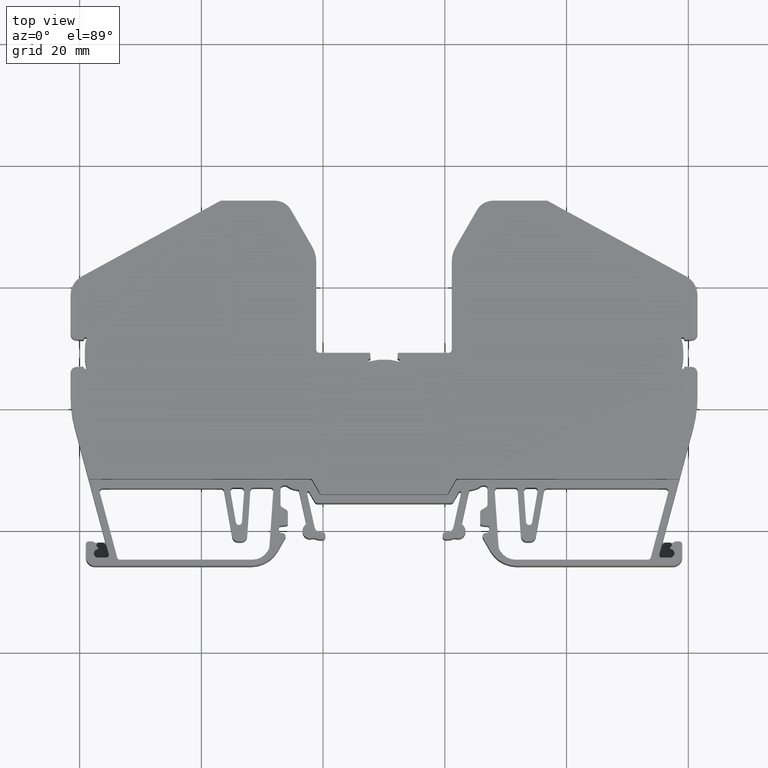
[diagram: clean part render]
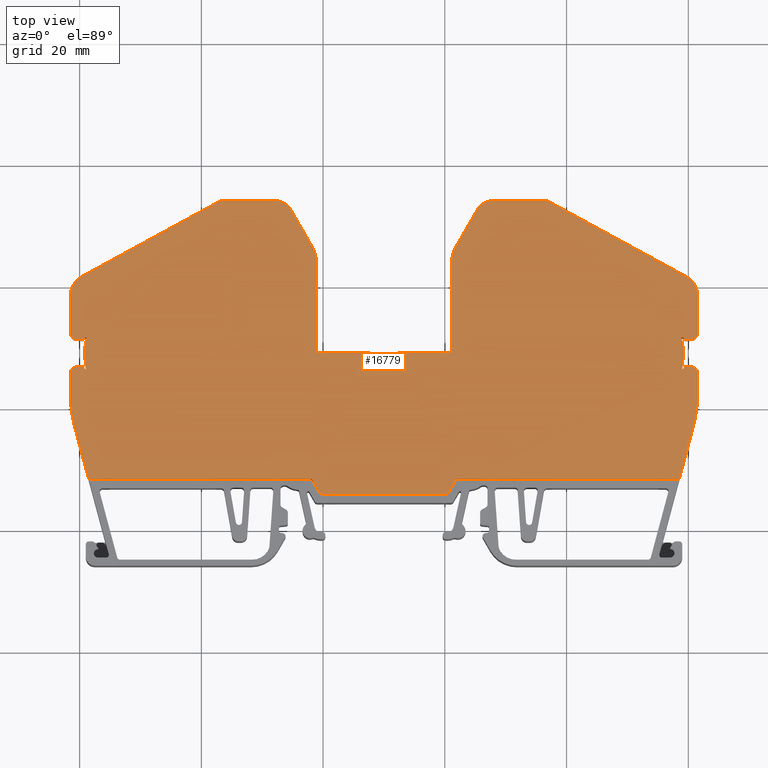
[diagram: same view with one face highlighted and labeled with its STEP entity id]
A machine part, top view. The second image highlights one B-rep face of the part: STEP entity #16779.
In plain terms, the highlighted planar face has unit normal (0, 0, 1).
Its self-contained STEP definition (entity closure, byte-faithful):
#279 = DIRECTION ( 'NONE',  ( 0.0000000000000000000, 0.0000000000000000000, 1.000000000000000000 ) ) ;
#284 = DIRECTION ( 'NONE',  ( 1.000000000000000000, 0.0000000000000000000, 0.0000000000000000000 ) ) ;
#286 = CARTESIAN_POINT ( 'NONE',  ( 1380.507059505063800, 432.2764455366744900, 15.10000000000000100 ) ) ;
#345 = CARTESIAN_POINT ( 'NONE',  ( 1332.450864096576000, 428.8739960424371100, 15.10000000000000100 ) ) ;
#346 = DIRECTION ( 'NONE',  ( 1.000000000000000000, 0.0000000000000000000, 0.0000000000000000000 ) ) ;
#354 = DIRECTION ( 'NONE',  ( 0.0000000000000000000, 0.0000000000000000000, 1.000000000000000000 ) ) ;
#379 = LINE ( 'NONE', #386, #6361 ) ;
#381 = CARTESIAN_POINT ( 'NONE',  ( 1282.007059505069900, 426.4082822040587600, 15.10000000000000100 ) ) ;
#385 = LINE ( 'NONE', #381, #6320 ) ;
#386 = CARTESIAN_POINT ( 'NONE',  ( 1282.007059505069900, 431.6199358779061900, 15.10000000000000100 ) ) ;
#391 = DIRECTION ( 'NONE',  ( -1.000000000000000000, -0.0000000000000000000, 0.0000000000000000000 ) ) ;
#430 = DIRECTION ( 'NONE',  ( 1.000000000000000000, 0.0000000000000000000, -0.0000000000000000000 ) ) ;
#447 = LINE ( 'NONE', #482, #6390 ) ;
#448 = CARTESIAN_POINT ( 'NONE',  ( 1319.385295467850000, 429.5739963311466500, 15.10000000000000100 ) ) ;
#451 = CARTESIAN_POINT ( 'NONE',  ( 1347.903042648175900, 451.0739963311599500, 15.09999999999998900 ) ) ;
#453 = CARTESIAN_POINT ( 'NONE',  ( 1345.304966436822500, 452.5739963311590400, 15.09999999999998900 ) ) ;
#454 = DIRECTION ( 'NONE',  ( 1.000000000000000000, -1.110223024625114500E-013, 0.0000000000000000000 ) ) ;
#455 = CARTESIAN_POINT ( 'NONE',  ( 1378.007059505064000, 438.5395016427289600, 15.09999999999998900 ) ) ;
#456 = DIRECTION ( 'NONE',  ( 1.000000000000000000, 0.0000000000000000000, 0.0000000000000000000 ) ) ;
#459 = DIRECTION ( 'NONE',  ( 0.0000000000000000000, 1.000000000000000000, -0.0000000000000000000 ) ) ;
#465 = DIRECTION ( 'NONE',  ( 9.192014768266044000E-007, -0.9999999999995775600, -0.0000000000000000000 ) ) ;
#466 = CARTESIAN_POINT ( 'NONE',  ( 1381.507061570451900, 331.2175553138849900, 15.10000000000000100 ) ) ;
#471 = DIRECTION ( 'NONE',  ( -0.0000000000000000000, -0.0000000000000000000, -1.000000000000000000 ) ) ;
#475 = LINE ( 'NONE', #487, #6335 ) ;
#479 = DIRECTION ( 'NONE',  ( -0.0000000000000000000, -0.0000000000000000000, -1.000000000000000000 ) ) ;
#480 = LINE ( 'NONE', #453, #6375 ) ;
#482 = CARTESIAN_POINT ( 'NONE',  ( 1378.587437217462100, 408.5426663702730800, 15.09999999999998900 ) ) ;
#483 = DIRECTION ( 'NONE',  ( 1.000000000000000000, -1.903239470785950800E-013, 0.0000000000000000000 ) ) ;
#485 = LINE ( 'NONE', #466, #6357 ) ;
#487 = CARTESIAN_POINT ( 'NONE',  ( 1381.507061570452200, 436.2925643445936400, 15.09999999999998900 ) ) ;
#489 = DIRECTION ( 'NONE',  ( 0.4999999999999657500, 0.8660254037844584700, -0.0000000000000000000 ) ) ;
#490 = DIRECTION ( 'NONE',  ( -0.2588002801199447700, -0.9659308541556367300, -0.0000000000000000000 ) ) ;
#491 = DIRECTION ( 'NONE',  ( -0.0000000000000000000, -0.0000000000000000000, -1.000000000000000000 ) ) ;
#493 = LINE ( 'NONE', #522, #6391 ) ;
#504 = DIRECTION ( 'NONE',  ( -0.0000000000000000000, -0.0000000000000000000, -1.000000000000000000 ) ) ;
#507 = DIRECTION ( 'NONE',  ( 1.000000000000000000, 0.0000000000000000000, 0.0000000000000000000 ) ) ;
#515 = CARTESIAN_POINT ( 'NONE',  ( 1298.507053994932000, 422.0725514345485300, 15.09999999999998900 ) ) ;
#517 = DIRECTION ( 'NONE',  ( -0.0000000000000000000, -0.0000000000000000000, -1.000000000000000000 ) ) ;
#522 = CARTESIAN_POINT ( 'NONE',  ( 1359.959882189196400, 452.3652991422723600, 15.10000000000004400 ) ) ;
#530 = CARTESIAN_POINT ( 'NONE',  ( 1361.507065015202200, 422.0725514345620000, 15.09999999999998900 ) ) ;
#533 = DIRECTION ( 'NONE',  ( 0.8779877064646860500, -0.4786831805034308400, -0.0000000000000000000 ) ) ;
#538 = CARTESIAN_POINT ( 'NONE',  ( 1332.612890107524000, 438.5395016427154900, 15.10000000000000100 ) ) ;
#541 = DIRECTION ( 'NONE',  ( 0.0000000000000000000, 1.000000000000000000, -0.0000000000000000000 ) ) ;
#542 = LINE ( 'NONE', #565, #6437 ) ;
#550 = DIRECTION ( 'NONE',  ( 1.000000000000000000, 0.0000000000000000000, -0.0000000000000000000 ) ) ;
#551 = DIRECTION ( 'NONE',  ( 0.0000000000000000000, -1.000000000000000000, -0.0000000000000000000 ) ) ;
#553 = DIRECTION ( 'NONE',  ( 1.000000000000000000, 0.0000000000000000000, 0.0000000000000000000 ) ) ;
#556 = DIRECTION ( 'NONE',  ( 1.000000000000000000, 0.0000000000000000000, 0.0000000000000000000 ) ) ;
#559 = LINE ( 'NONE', #538, #6403 ) ;
#565 = CARTESIAN_POINT ( 'NONE',  ( 1381.507059505064000, 331.2175553138849900, 15.10000000000000100 ) ) ;
#566 = DIRECTION ( 'NONE',  ( -0.0000000000000000000, -0.0000000000000000000, -1.000000000000000000 ) ) ;
#570 = LINE ( 'NONE', #572, #6418 ) ;
#571 = CARTESIAN_POINT ( 'NONE',  ( 1340.628823542284400, 429.5739963311594900, 15.09999999999999100 ) ) ;
#572 = CARTESIAN_POINT ( 'NONE',  ( 1350.440820881607800, 454.0739963311599500, 15.09999999999998900 ) ) ;
#578 = LINE ( 'NONE', #581, #6420 ) ;
#581 = CARTESIAN_POINT ( 'NONE',  ( 1279.188440239205600, 416.8965467236529300, 15.10000000000004400 ) ) ;
#582 = DIRECTION ( 'NONE',  ( -0.2588002801200688900, 0.9659308541556034200, -0.0000000000000000000 ) ) ;
#597 = LINE ( 'NONE', #613, #6445 ) ;
#599 = CARTESIAN_POINT ( 'NONE',  ( 1327.401228901802800, 438.5395016427154900, 15.10000000000000100 ) ) ;
#607 = DIRECTION ( 'NONE',  ( -0.0000000000000000000, -1.000000000000000000, -0.0000000000000000000 ) ) ;
#612 = LINE ( 'NONE', #599, #6430 ) ;
#613 = CARTESIAN_POINT ( 'NONE',  ( 1278.507057439682500, 331.2175553138714600, 15.10000000000000100 ) ) ;
#620 = DIRECTION ( 'NONE',  ( -0.0000000000000000000, 1.000000000000000000, 0.0000000000000000000 ) ) ;
#634 = DIRECTION ( 'NONE',  ( 1.000000000000000000, 0.0000000000000000000, 0.0000000000000000000 ) ) ;
#642 = DIRECTION ( 'NONE',  ( 0.0000000000000000000, 0.0000000000000000000, 1.000000000000000000 ) ) ;
#643 = DIRECTION ( 'NONE',  ( 1.000000000000000000, 1.110223024625180200E-014, 0.0000000000000000000 ) ) ;
#645 = CARTESIAN_POINT ( 'NONE',  ( 1327.563254913559800, 428.8739960424234700, 15.10000000000000100 ) ) ;
#663 = DIRECTION ( 'NONE',  ( -0.0000000000000000000, -0.0000000000000000000, -1.000000000000000000 ) ) ;
#666 = CARTESIAN_POINT ( 'NONE',  ( 1369.193302718438000, 429.0141127513574600, 15.10000000000000100 ) ) ;
#672 = CARTESIAN_POINT ( 'NONE',  ( 1346.128823536316100, 444.0009586856584700, 15.09999999999998900 ) ) ;
#673 = DIRECTION ( 'NONE',  ( -0.0000000000000000000, -0.0000000000000000000, -1.000000000000000000 ) ) ;
#674 = DIRECTION ( 'NONE',  ( 1.000000000000000000, 0.0000000000000000000, 0.0000000000000000000 ) ) ;
#685 = CARTESIAN_POINT ( 'NONE',  ( 1318.885295473820200, 431.1050129236735400, 15.09999999999998900 ) ) ;
#691 = LINE ( 'NONE', #685, #6478 ) ;
#692 = DIRECTION ( 'NONE',  ( 0.5000000000000405200, -0.8660254037844152800, -0.0000000000000000000 ) ) ;
#696 = CARTESIAN_POINT ( 'NONE',  ( 1318.215422492741500, 446.5009586856455700, 15.09999999999998900 ) ) ;
#701 = DIRECTION ( 'NONE',  ( -0.0000000000000000000, -1.000000000000000000, -0.0000000000000000000 ) ) ;
#712 = LINE ( 'NONE', #696, #6502 ) ;
#726 = DIRECTION ( 'NONE',  ( 1.000000000000000000, -2.158845106333508200E-013, -0.0000000000000000000 ) ) ;
#740 = CARTESIAN_POINT ( 'NONE',  ( 1312.111076361960200, 454.0739963311454500, 15.09999999999998900 ) ) ;
#741 = LINE ( 'NONE', #747, #6469 ) ;
#747 = CARTESIAN_POINT ( 'NONE',  ( 1330.007060531789900, 429.0739960545575400, 15.10000000000000100 ) ) ;
#748 = DIRECTION ( 'NONE',  ( -1.000000000000000000, -5.391711919074419500E-013, -0.0000000000000000000 ) ) ;
#752 = LINE ( 'NONE', #740, #6479 ) ;
#757 = CARTESIAN_POINT ( 'NONE',  ( 1282.007059505069900, 438.5395016427154900, 15.09999999999998900 ) ) ;
#761 = DIRECTION ( 'NONE',  ( 1.000000000000000000, -6.344131569286503000E-014, 0.0000000000000000000 ) ) ;
#768 = LINE ( 'NONE', #782, #6508 ) ;
#772 = CARTESIAN_POINT ( 'NONE',  ( 1303.188282860192700, 454.0739963311461300, 15.09999999999998900 ) ) ;
#777 = DIRECTION ( 'NONE',  ( 0.8779877064646933700, 0.4786831805034174000, -0.0000000000000000000 ) ) ;
#780 = DIRECTION ( 'NONE',  ( 1.000000000000000000, 0.0000000000000000000, 0.0000000000000000000 ) ) ;
#782 = CARTESIAN_POINT ( 'NONE',  ( 1330.007058478346200, 429.0739960545444700, 15.10000000000000100 ) ) ;
#784 = DIRECTION ( 'NONE',  ( 1.000000000000000000, 3.330669073875540900E-014, 0.0000000000000000000 ) ) ;
#786 = DIRECTION ( 'NONE',  ( -0.0000000000000000000, -0.0000000000000000000, -1.000000000000000000 ) ) ;
#787 = LINE ( 'NONE', #772, #6501 ) ;
#793 = DIRECTION ( 'NONE',  ( -0.0000000000000000000, -0.0000000000000000000, -1.000000000000000000 ) ) ;
#794 = DIRECTION ( 'NONE',  ( -0.0000000000000000000, -0.0000000000000000000, -1.000000000000000000 ) ) ;
#795 = CARTESIAN_POINT ( 'NONE',  ( 1290.820816291698100, 429.0141127513439900, 15.10000000000000100 ) ) ;
#797 = CARTESIAN_POINT ( 'NONE',  ( 1330.007059499150000, 417.9672282685015100, 15.10000000000000100 ) ) ;
#801 = DIRECTION ( 'NONE',  ( -1.000000000000000000, 5.391711919074419500E-013, -0.0000000000000000000 ) ) ;
#815 = DIRECTION ( 'NONE',  ( -0.0000000000000000000, -0.0000000000000000000, -1.000000000000000000 ) ) ;
#825 = CARTESIAN_POINT ( 'NONE',  ( 1312.111076361960200, 451.0739963311459600, 15.09999999999998900 ) ) ;
#830 = DIRECTION ( 'NONE',  ( 1.000000000000000000, 0.0000000000000000000, 0.0000000000000000000 ) ) ;
#846 = DIRECTION ( 'NONE',  ( -0.0000000000000000000, -0.0000000000000000000, -1.000000000000000000 ) ) ;
#863 = LINE ( 'NONE', #864, #6545 ) ;
#864 = CARTESIAN_POINT ( 'NONE',  ( 1341.128823536316100, 444.0009586856584700, 15.09999999999998900 ) ) ;
#867 = DIRECTION ( 'NONE',  ( 0.0000000000000000000, 1.000000000000000000, -0.0000000000000000000 ) ) ;
#872 = DIRECTION ( 'NONE',  ( 1.000000000000000000, -1.221245327087752500E-013, 0.0000000000000000000 ) ) ;
#887 = CARTESIAN_POINT ( 'NONE',  ( 1313.885295473820000, 444.0009586856450000, 15.09999999999998900 ) ) ;
#920 = CARTESIAN_POINT ( 'NONE',  ( 1278.507059505069900, 331.2175553138714600, 15.09999999999999100 ) ) ;
#921 = DIRECTION ( 'NONE',  ( -0.0000000000000000000, -1.000000000000000000, -0.0000000000000000000 ) ) ;
#934 = LINE ( 'NONE', #920, #6519 ) ;
#1065 = CARTESIAN_POINT ( 'NONE',  ( 1327.595558414996000, 428.0642166983818100, 15.10000000000000100 ) ) ;
#1081 = CARTESIAN_POINT ( 'NONE',  ( 1379.193302718437700, 429.0141127513574600, 15.10000000000000100 ) ) ;
#1100 = CARTESIAN_POINT ( 'NONE',  ( 1378.847816949997200, 426.4082817989321400, 15.10000000000000100 ) ) ;
#1131 = CARTESIAN_POINT ( 'NONE',  ( 1327.789887927380100, 428.2641362961462100, 15.10000000000000100 ) ) ;
#1297 = CARTESIAN_POINT ( 'NONE',  ( 1379.498930441186500, 426.7967511128397900, 15.10000000000000100 ) ) ;
#1307 = CARTESIAN_POINT ( 'NONE',  ( 1379.290291506542400, 426.6026117994340400, 15.10000000000000100 ) ) ;
#1324 = CARTESIAN_POINT ( 'NONE',  ( 1327.789697486734900, 428.2728621193334100, 15.10000000000000500 ) ) ;
#1349 = CARTESIAN_POINT ( 'NONE',  ( 1379.290289326307900, 431.4256063655214500, 15.10000000000000100 ) ) ;
#1358 = CARTESIAN_POINT ( 'NONE',  ( 1340.205312498048000, 405.8015322684449900, 15.10000000000000100 ) ) ;
#1365 = CARTESIAN_POINT ( 'NONE',  ( 1332.418560595140000, 428.0642166983952300, 15.10000000000000100 ) ) ;
#1367 = CARTESIAN_POINT ( 'NONE',  ( 1332.224421523399300, 428.2728621193470000, 15.10000000000000700 ) ) ;
#1384 = CARTESIAN_POINT ( 'NONE',  ( 1340.551722025107000, 406.0015311695425500, 15.10000000000000900 ) ) ;
#1385 = CARTESIAN_POINT ( 'NONE',  ( 1379.498934747259900, 431.2314672937809500, 15.10000000000000700 ) ) ;
#1400 = CARTESIAN_POINT ( 'NONE',  ( 1319.808806512086000, 405.8015322684315700, 15.10000000000000100 ) ) ;
#1403 = CARTESIAN_POINT ( 'NONE',  ( 1280.923746435614000, 426.4082822040455200, 15.10000000000000500 ) ) ;
#1420 = CARTESIAN_POINT ( 'NONE',  ( 1279.463428280159600, 426.7508199595254700, 15.10000000000000100 ) ) ;
#1438 = CARTESIAN_POINT ( 'NONE',  ( 1379.090369728543900, 431.6199358779061300, 15.10000000000000100 ) ) ;
#1443 = CARTESIAN_POINT ( 'NONE',  ( 1319.462396985027700, 406.0015311695288500, 15.10000000000000500 ) ) ;
#1445 = CARTESIAN_POINT ( 'NONE',  ( 1280.923749281592100, 431.6199358778929400, 15.10000000000000100 ) ) ;
#1449 = CARTESIAN_POINT ( 'NONE',  ( 1380.550691839306600, 426.7508199110930000, 15.10000000000000100 ) ) ;
#1452 = CARTESIAN_POINT ( 'NONE',  ( 1279.463431029879100, 431.2773977119039700, 15.10000000000000100 ) ) ;
#1474 = CARTESIAN_POINT ( 'NONE',  ( 1332.612890107524000, 427.8642971006307800, 15.10000000000000100 ) ) ;
#1486 = CARTESIAN_POINT ( 'NONE',  ( 1379.090372240471900, 426.4082822040587600, 15.10000000000000100 ) ) ;
#1489 = CARTESIAN_POINT ( 'NONE',  ( 1327.401228902206600, 427.8642971006175300, 15.10000000000000100 ) ) ;
#1504 = CARTESIAN_POINT ( 'NONE',  ( 1281.480267466846300, 408.3426663702593900, 15.10000000000004900 ) ) ;
#1511 = CARTESIAN_POINT ( 'NONE',  ( 1380.550687700782900, 431.2773976997127100, 15.10000000000000500 ) ) ;
#1515 = CARTESIAN_POINT ( 'NONE',  ( 1281.166299947875400, 431.6199358778928300, 15.10000000000000100 ) ) ;
#1518 = CARTESIAN_POINT ( 'NONE',  ( 1332.251054525030700, 428.8827218661572800, 15.10000000000000500 ) ) ;
#1523 = CARTESIAN_POINT ( 'NONE',  ( 1318.110732044399400, 408.3426663702592200, 15.09999999999999800 ) ) ;
#1532 = CARTESIAN_POINT ( 'NONE',  ( 1278.507059505069900, 432.2764455366610200, 15.09999999999999600 ) ) ;
#1546 = CARTESIAN_POINT ( 'NONE',  ( 1341.903386965735100, 408.3426663702725300, 15.10000000000000100 ) ) ;
#1548 = CARTESIAN_POINT ( 'NONE',  ( 1278.507057439682500, 425.7517721646530000, 15.10000000000000100 ) ) ;
#1554 = CARTESIAN_POINT ( 'NONE',  ( 1327.763064485104500, 428.8827218661437500, 15.10000000000000100 ) ) ;
#1561 = CARTESIAN_POINT ( 'NONE',  ( 1381.507059505064000, 432.2764455366744900, 15.10000000000000100 ) ) ;
#1562 = CARTESIAN_POINT ( 'NONE',  ( 1327.401228902004700, 427.6217425959528700, 15.10000000000000100 ) ) ;
#1563 = CARTESIAN_POINT ( 'NONE',  ( 1378.847819062260700, 431.6199358779061300, 15.10000000000000100 ) ) ;
#1575 = CARTESIAN_POINT ( 'NONE',  ( 1319.385295467849800, 429.0739960545502100, 15.10000000000000100 ) ) ;
#1576 = CARTESIAN_POINT ( 'NONE',  ( 1281.166302169485800, 426.4082813937924400, 15.10000000000000100 ) ) ;
#1586 = CARTESIAN_POINT ( 'NONE',  ( 1332.612890107524200, 427.6217425929222000, 15.10000000000000100 ) ) ;
#1609 = CARTESIAN_POINT ( 'NONE',  ( 1381.507061570451900, 425.7517721646664800, 15.10000000000000100 ) ) ;
#1610 = CARTESIAN_POINT ( 'NONE',  ( 1381.507059505062700, 438.5395032513315500, 15.09999999999998900 ) ) ;
#1617 = CARTESIAN_POINT ( 'NONE',  ( 1318.885295473820200, 429.5739963311466500, 15.09999999999999600 ) ) ;
#1620 = CARTESIAN_POINT ( 'NONE',  ( 1347.903042648175900, 454.0739963311600000, 15.09999999999998900 ) ) ;
#1623 = CARTESIAN_POINT ( 'NONE',  ( 1278.507059505069900, 438.5395016427154900, 15.09999999999998900 ) ) ;
#1626 = CARTESIAN_POINT ( 'NONE',  ( 1303.188282860192700, 454.0739963311469300, 15.09999999999998900 ) ) ;
#1629 = CARTESIAN_POINT ( 'NONE',  ( 1381.507061570452200, 422.0725391409831100, 15.09999999999999600 ) ) ;
#1634 = CARTESIAN_POINT ( 'NONE',  ( 1380.825678770928600, 416.8965467236655500, 15.09999999999998900 ) ) ;
#1639 = CARTESIAN_POINT ( 'NONE',  ( 1381.507060881989200, 436.2925643445936400, 15.09999999999999400 ) ) ;
#1642 = CARTESIAN_POINT ( 'NONE',  ( 1379.682450636825900, 441.6124586153557600, 15.10000000000003000 ) ) ;
#1643 = CARTESIAN_POINT ( 'NONE',  ( 1280.331668373308000, 441.6124586153419500, 15.09999999999998900 ) ) ;
#1644 = CARTESIAN_POINT ( 'NONE',  ( 1312.111076361960600, 454.0739963311454500, 15.09999999999998900 ) ) ;
#1658 = CARTESIAN_POINT ( 'NONE',  ( 1341.798696517393900, 446.5009586856581900, 15.09999999999998900 ) ) ;
#1660 = CARTESIAN_POINT ( 'NONE',  ( 1378.533851543289500, 408.3426663702729800, 15.09999999999999400 ) ) ;
#1667 = CARTESIAN_POINT ( 'NONE',  ( 1341.128823536316100, 444.0009586856584700, 15.09999999999998900 ) ) ;
#1670 = CARTESIAN_POINT ( 'NONE',  ( 1345.304966436822700, 452.5739963311593800, 15.09999999999998900 ) ) ;
#1675 = CARTESIAN_POINT ( 'NONE',  ( 1318.215422492741700, 446.5009586856453400, 15.09999999999998900 ) ) ;
#1676 = CARTESIAN_POINT ( 'NONE',  ( 1332.450866918093900, 429.0739960545588500, 15.10000000000000100 ) ) ;
#1680 = CARTESIAN_POINT ( 'NONE',  ( 1341.128823536316100, 429.5739963311594900, 15.09999999999998900 ) ) ;
#1685 = CARTESIAN_POINT ( 'NONE',  ( 1278.507057439682300, 422.0725391409695200, 15.09999999999999300 ) ) ;
#1700 = CARTESIAN_POINT ( 'NONE',  ( 1340.628823542284600, 429.0739960545632800, 15.09999999999999600 ) ) ;
#1706 = CARTESIAN_POINT ( 'NONE',  ( 1314.709152573312600, 452.5739963311460200, 15.09999999999998900 ) ) ;
#1709 = CARTESIAN_POINT ( 'NONE',  ( 1279.188440239206300, 416.8965467236507200, 15.10000000000003000 ) ) ;
#1711 = CARTESIAN_POINT ( 'NONE',  ( 1356.825836149942200, 454.0739963311600000, 15.10000000000000700 ) ) ;
#1712 = CARTESIAN_POINT ( 'NONE',  ( 1318.885295473820000, 444.0009586856450000, 15.09999999999998900 ) ) ;
#1730 = CARTESIAN_POINT ( 'NONE',  ( 1327.563252092041000, 429.0739960545458300, 15.10000000000000100 ) ) ;
#1895 = CARTESIAN_POINT ( 'NONE',  ( 1280.515184262873800, 431.2314672937679300, 15.10000000000000700 ) ) ;
#1914 = CARTESIAN_POINT ( 'NONE',  ( 1280.515188568948100, 426.7967511128262600, 15.10000000000000100 ) ) ;
#1940 = CARTESIAN_POINT ( 'NONE',  ( 1369.193302718438000, 429.0141127513574600, 15.10000000000000100 ) ) ;
#1950 = DIRECTION ( 'NONE',  ( 1.000000000000000000, 0.0000000000000000000, 0.0000000000000000000 ) ) ;
#1952 = CARTESIAN_POINT ( 'NONE',  ( 1327.789887927380100, 428.2641362961462100, 15.10000000000000100 ) ) ;
#1954 = CARTESIAN_POINT ( 'NONE',  ( 1327.789887927380100, 428.2127216265203100, 15.10000000000000300 ) ) ;
#1965 = DIRECTION ( 'NONE',  ( -0.0000000000000000000, -0.0000000000000000000, -1.000000000000000000 ) ) ;
#1976 = CARTESIAN_POINT ( 'NONE',  ( 1327.646952415349900, 428.0656744296189800, 15.10000000000000100 ) ) ;
#1982 = CARTESIAN_POINT ( 'NONE',  ( 1327.595558414996000, 428.0642166983818100, 15.10000000000000100 ) ) ;
#1985 = CARTESIAN_POINT ( 'NONE',  ( 1327.769136661193700, 428.1616016206506300, 15.10000000000000300 ) ) ;
#1998 = CARTESIAN_POINT ( 'NONE',  ( 1327.697463521416000, 428.0878667303655300, 15.10000000000000100 ) ) ;
#3220 = EDGE_CURVE ( 'NONE', #12577, #12496, #13906, .T. ) ;
#3291 = EDGE_CURVE ( 'NONE', #12423, #12586, #13947, .T. ) ;
#3453 = EDGE_CURVE ( 'NONE', #11465, #11482, #14006, .T. ) ;
#3566 = EDGE_CURVE ( 'NONE', #11569, #11627, #14043, .T. ) ;
#3613 = EDGE_CURVE ( 'NONE', #11609, #11467, #14073, .T. ) ;
#3615 = EDGE_CURVE ( 'NONE', #11605, #11615, #14075, .T. ) ;
#3698 = EDGE_CURVE ( 'NONE', #11430, #4904, #14020, .T. ) ;
#3706 = EDGE_CURVE ( 'NONE', #11635, #12496, #16077, .T. ) ;
#3727 = EDGE_CURVE ( 'NONE', #11567, #12423, #16121, .T. ) ;
#3731 = EDGE_CURVE ( 'NONE', #12577, #11637, #14040, .T. ) ;
#3759 = EDGE_CURVE ( 'NONE', #11527, #11481, #14049, .T. ) ;
#3786 = DIRECTION ( 'NONE',  ( 1.000000000000000000, 0.0000000000000000000, -0.0000000000000000000 ) ) ;
#3793 = CARTESIAN_POINT ( 'NONE',  ( 1282.007059505069900, 438.5395016427154900, 15.10000000000000100 ) ) ;
#3829 = FACE_OUTER_BOUND ( 'NONE', #5300, .T. ) ;
#3831 = DIRECTION ( 'NONE',  ( 0.0000000000000000000, 0.0000000000000000000, 1.000000000000000000 ) ) ;
#3841 = PLANE ( 'NONE',  #6978 ) ;
#3907 = EDGE_CURVE ( 'NONE', #11591, #12586, #14059, .T. ) ;
#3954 = EDGE_CURVE ( 'NONE', #11482, #11689, #8659, .T. ) ;
#4049 = EDGE_CURVE ( 'NONE', #11465, #11740, #13358, .T. ) ;
#4106 = EDGE_CURVE ( 'NONE', #11605, #11715, #7156, .T. ) ;
#4110 = EDGE_CURVE ( 'NONE', #11818, #4895, #7150, .T. ) ;
#4125 = EDGE_CURVE ( 'NONE', #11615, #11803, #8899, .T. ) ;
#4131 = EDGE_CURVE ( 'NONE', #11527, #11840, #8905, .T. ) ;
#4185 = EDGE_CURVE ( 'NONE', #11609, #11860, #9022, .T. ) ;
#4199 = EDGE_CURVE ( 'NONE', #11834, #11635, #6110, .T. ) ;
#4208 = EDGE_CURVE ( 'NONE', #11849, #11430, #9030, .T. ) ;
#4217 = EDGE_CURVE ( 'NONE', #11711, #11481, #6106, .T. ) ;
#4247 = EDGE_CURVE ( 'NONE', #11808, #11627, #9127, .T. ) ;
#4248 = EDGE_CURVE ( 'NONE', #11569, #11467, #9190, .T. ) ;
#4263 = EDGE_CURVE ( 'NONE', #11966, #11689, #6213, .T. ) ;
#4268 = EDGE_CURVE ( 'NONE', #11637, #11831, #9230, .T. ) ;
#4283 = EDGE_CURVE ( 'NONE', #11838, #11808, #9273, .T. ) ;
#4291 = EDGE_CURVE ( 'NONE', #11567, #11925, #6271, .T. ) ;
#4298 = EDGE_CURVE ( 'NONE', #11860, #11977, #9307, .T. ) ;
#4314 = EDGE_CURVE ( 'NONE', #11910, #11591, #9404, .T. ) ;
#4337 = EDGE_CURVE ( 'NONE', #11840, #11914, #6313, .T. ) ;
#4341 = EDGE_CURVE ( 'NONE', #12095, #11803, #6286, .T. ) ;
#4362 = EDGE_CURVE ( 'NONE', #11740, #4859, #385, .T. ) ;
#4373 = EDGE_CURVE ( 'NONE', #11939, #11711, #379, .T. ) ;
#4384 = EDGE_CURVE ( 'NONE', #12068, #12040, #6349, .T. ) ;
#4389 = EDGE_CURVE ( 'NONE', #12040, #12021, #475, .T. ) ;
#4390 = EDGE_CURVE ( 'NONE', #11929, #12006, #6383, .T. ) ;
#4391 = EDGE_CURVE ( 'NONE', #12019, #12036, #480, .T. ) ;
#4394 = EDGE_CURVE ( 'NONE', #12064, #11977, #447, .T. ) ;
#4397 = EDGE_CURVE ( 'NONE', #12048, #11966, #485, .T. ) ;
#4398 = EDGE_CURVE ( 'NONE', #12036, #12008, #6368, .T. ) ;
#4401 = EDGE_CURVE ( 'NONE', #12076, #12068, #493, .T. ) ;
#4411 = EDGE_CURVE ( 'NONE', #12048, #12064, #6347, .T. ) ;
#4412 = EDGE_CURVE ( 'NONE', #12078, #12102, #6378, .T. ) ;
#4417 = EDGE_CURVE ( 'NONE', #11914, #12021, #542, .T. ) ;
#4419 = EDGE_CURVE ( 'NONE', #12121, #12117, #6400, .T. ) ;
#4424 = EDGE_CURVE ( 'NONE', #11715, #11927, #559, .T. ) ;
#4425 = EDGE_CURVE ( 'NONE', #12008, #12076, #570, .T. ) ;
#4434 = EDGE_CURVE ( 'NONE', #11921, #11818, #612, .T. ) ;
#4437 = EDGE_CURVE ( 'NONE', #11925, #12102, #597, .T. ) ;
#4441 = EDGE_CURVE ( 'NONE', #11838, #12078, #578, .T. ) ;
#4444 = EDGE_CURVE ( 'NONE', #11849, #12119, #6396, .T. ) ;
#4445 = EDGE_CURVE ( 'NONE', #11939, #4865, #6419, .T. ) ;
#4465 = EDGE_CURVE ( 'NONE', #12087, #12006, #691, .T. ) ;
#4469 = EDGE_CURVE ( 'NONE', #12097, #12113, #712, .T. ) ;
#4471 = EDGE_CURVE ( 'NONE', #12032, #12019, #6456, .T. ) ;
#4482 = EDGE_CURVE ( 'NONE', #12117, #12095, #741, .T. ) ;
#4483 = EDGE_CURVE ( 'NONE', #12029, #12054, #752, .T. ) ;
#4488 = EDGE_CURVE ( 'NONE', #11910, #11831, #6503, .T. ) ;
#4490 = EDGE_CURVE ( 'NONE', #12012, #12061, #6480, .T. ) ;
#4495 = EDGE_CURVE ( 'NONE', #11921, #11927, #6462, .T. ) ;
#4500 = EDGE_CURVE ( 'NONE', #12061, #12029, #787, .T. ) ;
#4503 = EDGE_CURVE ( 'NONE', #12119, #11929, #768, .T. ) ;
#4508 = EDGE_CURVE ( 'NONE', #12054, #12097, #6528, .T. ) ;
#4522 = EDGE_CURVE ( 'NONE', #12113, #12087, #6568, .T. ) ;
#4525 = EDGE_CURVE ( 'NONE', #12121, #12032, #863, .T. ) ;
#4537 = EDGE_CURVE ( 'NONE', #12012, #11834, #934, .T. ) ;
#4626 = EDGE_CURVE ( 'NONE', #4865, #4859, #6577, .T. ) ;
#4638 = EDGE_CURVE ( 'NONE', #4904, #4895, #14023, .T. ) ;
#4859 = VERTEX_POINT ( 'NONE', #1100 ) ;
#4865 = VERTEX_POINT ( 'NONE', #1081 ) ;
#4895 = VERTEX_POINT ( 'NONE', #1065 ) ;
#4904 = VERTEX_POINT ( 'NONE', #1131 ) ;
#5300 = EDGE_LOOP ( 'NONE', ( #5588, #5556, #5609, #5572, #5600, #5581, #5596, #5586, #5661, #5597, #5564, #5576, #5589, #5554, #5577, #5584, #5599, #5659, #5567, #5643, #5582, #5598, #5575, #5583, #5551, #5579, #5550, #5570, #5559, #5545, #5547, #5592, #5594, #5601, #5561, #5552, #5593, #5540, #5639, #5655, #5544, #5558, #5565, #5574, #5560, #5634, #5622, #5675, #5627, #5645, #5677, #5664, #5702, #5646, #5644, #5610, #5657, #5617, #5638, #5632, #5630, #5618, #5605, #5654, #5640, #5604, #5658, #5619, #5668 ) ) ;
#5540 = ORIENTED_EDGE ( 'NONE', *, *, #4341, .T. ) ;
#5544 = ORIENTED_EDGE ( 'NONE', *, *, #4106, .T. ) ;
#5545 = ORIENTED_EDGE ( 'NONE', *, *, #4401, .F. ) ;
#5547 = ORIENTED_EDGE ( 'NONE', *, *, #4425, .F. ) ;
#5550 = ORIENTED_EDGE ( 'NONE', *, *, #4417, .T. ) ;
#5551 = ORIENTED_EDGE ( 'NONE', *, *, #4131, .T. ) ;
#5552 = ORIENTED_EDGE ( 'NONE', *, *, #4419, .T. ) ;
#5554 = ORIENTED_EDGE ( 'NONE', *, *, #4397, .T. ) ;
#5556 = ORIENTED_EDGE ( 'NONE', *, *, #4437, .T. ) ;
#5558 = ORIENTED_EDGE ( 'NONE', *, *, #4424, .T. ) ;
#5559 = ORIENTED_EDGE ( 'NONE', *, *, #4384, .F. ) ;
#5560 = ORIENTED_EDGE ( 'NONE', *, *, #4110, .T. ) ;
#5561 = ORIENTED_EDGE ( 'NONE', *, *, #4525, .F. ) ;
#5564 = ORIENTED_EDGE ( 'NONE', *, *, #4298, .T. ) ;
#5565 = ORIENTED_EDGE ( 'NONE', *, *, #4495, .F. ) ;
#5567 = ORIENTED_EDGE ( 'NONE', *, *, #4362, .T. ) ;
#5570 = ORIENTED_EDGE ( 'NONE', *, *, #4389, .F. ) ;
#5572 = ORIENTED_EDGE ( 'NONE', *, *, #4441, .F. ) ;
#5574 = ORIENTED_EDGE ( 'NONE', *, *, #4434, .T. ) ;
#5575 = ORIENTED_EDGE ( 'NONE', *, *, #4217, .T. ) ;
#5576 = ORIENTED_EDGE ( 'NONE', *, *, #4394, .F. ) ;
#5577 = ORIENTED_EDGE ( 'NONE', *, *, #4263, .T. ) ;
#5579 = ORIENTED_EDGE ( 'NONE', *, *, #4337, .T. ) ;
#5581 = ORIENTED_EDGE ( 'NONE', *, *, #4247, .T. ) ;
#5582 = ORIENTED_EDGE ( 'NONE', *, *, #4445, .F. ) ;
#5583 = ORIENTED_EDGE ( 'NONE', *, *, #3759, .F. ) ;
#5584 = ORIENTED_EDGE ( 'NONE', *, *, #3954, .F. ) ;
#5586 = ORIENTED_EDGE ( 'NONE', *, *, #4248, .T. ) ;
#5588 = ORIENTED_EDGE ( 'NONE', *, *, #4291, .T. ) ;
#5589 = ORIENTED_EDGE ( 'NONE', *, *, #4411, .F. ) ;
#5592 = ORIENTED_EDGE ( 'NONE', *, *, #4398, .F. ) ;
#5593 = ORIENTED_EDGE ( 'NONE', *, *, #4482, .T. ) ;
#5594 = ORIENTED_EDGE ( 'NONE', *, *, #4391, .F. ) ;
#5596 = ORIENTED_EDGE ( 'NONE', *, *, #3566, .F. ) ;
#5597 = ORIENTED_EDGE ( 'NONE', *, *, #4185, .T. ) ;
#5598 = ORIENTED_EDGE ( 'NONE', *, *, #4373, .T. ) ;
#5599 = ORIENTED_EDGE ( 'NONE', *, *, #3453, .F. ) ;
#5600 = ORIENTED_EDGE ( 'NONE', *, *, #4283, .T. ) ;
#5601 = ORIENTED_EDGE ( 'NONE', *, *, #4471, .F. ) ;
#5604 = ORIENTED_EDGE ( 'NONE', *, *, #4314, .T. ) ;
#5605 = ORIENTED_EDGE ( 'NONE', *, *, #3731, .T. ) ;
#5609 = ORIENTED_EDGE ( 'NONE', *, *, #4412, .F. ) ;
#5610 = ORIENTED_EDGE ( 'NONE', *, *, #4483, .F. ) ;
#5617 = ORIENTED_EDGE ( 'NONE', *, *, #4490, .F. ) ;
#5618 = ORIENTED_EDGE ( 'NONE', *, *, #3220, .F. ) ;
#5619 = ORIENTED_EDGE ( 'NONE', *, *, #3291, .F. ) ;
#5622 = ORIENTED_EDGE ( 'NONE', *, *, #3698, .F. ) ;
#5627 = ORIENTED_EDGE ( 'NONE', *, *, #4444, .T. ) ;
#5630 = ORIENTED_EDGE ( 'NONE', *, *, #3706, .T. ) ;
#5632 = ORIENTED_EDGE ( 'NONE', *, *, #4199, .T. ) ;
#5634 = ORIENTED_EDGE ( 'NONE', *, *, #4638, .F. ) ;
#5638 = ORIENTED_EDGE ( 'NONE', *, *, #4537, .T. ) ;
#5639 = ORIENTED_EDGE ( 'NONE', *, *, #4125, .F. ) ;
#5640 = ORIENTED_EDGE ( 'NONE', *, *, #4488, .F. ) ;
#5643 = ORIENTED_EDGE ( 'NONE', *, *, #4626, .F. ) ;
#5644 = ORIENTED_EDGE ( 'NONE', *, *, #4508, .F. ) ;
#5645 = ORIENTED_EDGE ( 'NONE', *, *, #4503, .T. ) ;
#5646 = ORIENTED_EDGE ( 'NONE', *, *, #4469, .F. ) ;
#5654 = ORIENTED_EDGE ( 'NONE', *, *, #4268, .T. ) ;
#5655 = ORIENTED_EDGE ( 'NONE', *, *, #3615, .F. ) ;
#5657 = ORIENTED_EDGE ( 'NONE', *, *, #4500, .F. ) ;
#5658 = ORIENTED_EDGE ( 'NONE', *, *, #3907, .T. ) ;
#5659 = ORIENTED_EDGE ( 'NONE', *, *, #4049, .T. ) ;
#5661 = ORIENTED_EDGE ( 'NONE', *, *, #3613, .F. ) ;
#5664 = ORIENTED_EDGE ( 'NONE', *, *, #4465, .F. ) ;
#5668 = ORIENTED_EDGE ( 'NONE', *, *, #3727, .F. ) ;
#5675 = ORIENTED_EDGE ( 'NONE', *, *, #4208, .F. ) ;
#5677 = ORIENTED_EDGE ( 'NONE', *, *, #4390, .T. ) ;
#5702 = ORIENTED_EDGE ( 'NONE', *, *, #4522, .F. ) ;
#6106 = CIRCLE ( 'NONE', #6107, 0.1999999999999779700 ) ;
#6107 = AXIS2_PLACEMENT_3D ( 'NONE', #9078, #9107, #9111 ) ;
#6110 = CIRCLE ( 'NONE', #6134, 1.000000000000111900 ) ;
#6116 = VECTOR ( 'NONE', #9004, 1000.000000000000100 ) ;
#6133 = VECTOR ( 'NONE', #9040, 1000.000000000000100 ) ;
#6134 = AXIS2_PLACEMENT_3D ( 'NONE', #8989, #9067, #9024 ) ;
#6177 = AXIS2_PLACEMENT_3D ( 'NONE', #9237, #9218, #9217 ) ;
#6189 = VECTOR ( 'NONE', #9216, 1000.000000000000000 ) ;
#6194 = VECTOR ( 'NONE', #9194, 1000.000000000000000 ) ;
#6212 = VECTOR ( 'NONE', #9197, 1000.000000000000100 ) ;
#6213 = CIRCLE ( 'NONE', #6177, 1.000000000000111900 ) ;
#6223 = VECTOR ( 'NONE', #9322, 1000.000000000000000 ) ;
#6229 = VECTOR ( 'NONE', #9252, 1000.000000000000000 ) ;
#6257 = VECTOR ( 'NONE', #9394, 1000.000000000000000 ) ;
#6270 = AXIS2_PLACEMENT_3D ( 'NONE', #9308, #9323, #9314 ) ;
#6271 = CIRCLE ( 'NONE', #6270, 1.000000000000111900 ) ;
#6286 = CIRCLE ( 'NONE', #6319, 0.2000000122019951500 ) ;
#6290 = AXIS2_PLACEMENT_3D ( 'NONE', #286, #279, #284 ) ;
#6313 = CIRCLE ( 'NONE', #6290, 1.000000000000111900 ) ;
#6319 = AXIS2_PLACEMENT_3D ( 'NONE', #345, #354, #346 ) ;
#6320 = VECTOR ( 'NONE', #391, 1000.000000000000000 ) ;
#6335 = VECTOR ( 'NONE', #465, 1000.000000000000000 ) ;
#6343 = AXIS2_PLACEMENT_3D ( 'NONE', #455, #491, #483 ) ;
#6347 = CIRCLE ( 'NONE', #6381, 19.99999655525397200 ) ;
#6349 = CIRCLE ( 'NONE', #6343, 3.500000000000058600 ) ;
#6353 = AXIS2_PLACEMENT_3D ( 'NONE', #448, #479, #456 ) ;
#6357 = VECTOR ( 'NONE', #459, 1000.000000000000000 ) ;
#6358 = AXIS2_PLACEMENT_3D ( 'NONE', #451, #471, #454 ) ;
#6361 = VECTOR ( 'NONE', #430, 1000.000000000000000 ) ;
#6368 = CIRCLE ( 'NONE', #6358, 3.000000000000113700 ) ;
#6375 = VECTOR ( 'NONE', #489, 1000.000000000000000 ) ;
#6378 = CIRCLE ( 'NONE', #6380, 19.99999655525353100 ) ;
#6380 = AXIS2_PLACEMENT_3D ( 'NONE', #515, #517, #553 ) ;
#6381 = AXIS2_PLACEMENT_3D ( 'NONE', #530, #504, #507 ) ;
#6383 = CIRCLE ( 'NONE', #6353, 0.4999999940318300400 ) ;
#6390 = VECTOR ( 'NONE', #490, 1000.000000000000100 ) ;
#6391 = VECTOR ( 'NONE', #533, 1000.000000000000100 ) ;
#6396 = CIRCLE ( 'NONE', #6405, 0.2000000122019951500 ) ;
#6400 = CIRCLE ( 'NONE', #6433, 0.4999999940318300400 ) ;
#6403 = VECTOR ( 'NONE', #551, 1000.000000000000000 ) ;
#6405 = AXIS2_PLACEMENT_3D ( 'NONE', #645, #642, #634 ) ;
#6418 = VECTOR ( 'NONE', #550, 1000.000000000000000 ) ;
#6419 = CIRCLE ( 'NONE', #6441, 9.999999999999786800 ) ;
#6420 = VECTOR ( 'NONE', #582, 1000.000000000000200 ) ;
#6430 = VECTOR ( 'NONE', #620, 1000.000000000000000 ) ;
#6433 = AXIS2_PLACEMENT_3D ( 'NONE', #571, #566, #556 ) ;
#6437 = VECTOR ( 'NONE', #541, 1000.000000000000000 ) ;
#6441 = AXIS2_PLACEMENT_3D ( 'NONE', #666, #663, #643 ) ;
#6445 = VECTOR ( 'NONE', #607, 1000.000000000000000 ) ;
#6456 = CIRCLE ( 'NONE', #6466, 4.999999999999893400 ) ;
#6459 = AXIS2_PLACEMENT_3D ( 'NONE', #795, #794, #784 ) ;
#6462 = CIRCLE ( 'NONE', #6496, 9.999999999999120700 ) ;
#6466 = AXIS2_PLACEMENT_3D ( 'NONE', #672, #673, #674 ) ;
#6469 = VECTOR ( 'NONE', #748, 1000.000000000000000 ) ;
#6478 = VECTOR ( 'NONE', #701, 1000.000000000000000 ) ;
#6479 = VECTOR ( 'NONE', #726, 1000.000000000000000 ) ;
#6480 = CIRCLE ( 'NONE', #6511, 3.500000000000058600 ) ;
#6496 = AXIS2_PLACEMENT_3D ( 'NONE', #797, #793, #780 ) ;
#6501 = VECTOR ( 'NONE', #777, 1000.000000000000100 ) ;
#6502 = VECTOR ( 'NONE', #692, 1000.000000000000000 ) ;
#6503 = CIRCLE ( 'NONE', #6459, 9.999999999999786800 ) ;
#6508 = VECTOR ( 'NONE', #801, 1000.000000000000000 ) ;
#6511 = AXIS2_PLACEMENT_3D ( 'NONE', #757, #786, #761 ) ;
#6519 = VECTOR ( 'NONE', #921, 1000.000000000000000 ) ;
#6528 = CIRCLE ( 'NONE', #6551, 2.999999999999225500 ) ;
#6545 = VECTOR ( 'NONE', #867, 1000.000000000000000 ) ;
#6551 = AXIS2_PLACEMENT_3D ( 'NONE', #825, #815, #830 ) ;
#6556 = AXIS2_PLACEMENT_3D ( 'NONE', #887, #846, #872 ) ;
#6568 = CIRCLE ( 'NONE', #6556, 4.999999999999671400 ) ;
#6577 = CIRCLE ( 'NONE', #6582, 9.999999999999786800 ) ;
#6582 = AXIS2_PLACEMENT_3D ( 'NONE', #1940, #1965, #1950 ) ;
#6978 = AXIS2_PLACEMENT_3D ( 'NONE', #3793, #3831, #3786 ) ;
#7138 = AXIS2_PLACEMENT_3D ( 'NONE', #8880, #8882, #8894 ) ;
#7139 = AXIS2_PLACEMENT_3D ( 'NONE', #8862, #8886, #8887 ) ;
#7144 = VECTOR ( 'NONE', #8912, 1000.000000000000100 ) ;
#7148 = VECTOR ( 'NONE', #8921, 999.9999999999998900 ) ;
#7150 = CIRCLE ( 'NONE', #7139, 0.1999999999999779700 ) ;
#7156 = CIRCLE ( 'NONE', #7138, 0.1999999999999779700 ) ;
#8589 = CARTESIAN_POINT ( 'NONE',  ( 1280.822695231900800, 426.4279356009327000, 15.10000000000000300 ) ) ;
#8590 = CARTESIAN_POINT ( 'NONE',  ( 1280.725821792252600, 426.5477188353579500, 15.10000000000000100 ) ) ;
#8595 = CARTESIAN_POINT ( 'NONE',  ( 1280.869535293287500, 426.4087138446044500, 15.10000000000000300 ) ) ;
#8601 = CARTESIAN_POINT ( 'NONE',  ( 1280.723827503592900, 426.6026117994206900, 15.10000000000000100 ) ) ;
#8613 = CARTESIAN_POINT ( 'NONE',  ( 1280.923746435614000, 426.4082822040455200, 15.10000000000000500 ) ) ;
#8621 = CARTESIAN_POINT ( 'NONE',  ( 1280.745994195645800, 426.5018050028477900, 15.10000000000000100 ) ) ;
#8639 = DIRECTION ( 'NONE',  ( 0.9990477948722860100, -0.04362915952459978100, -0.0000000000000000000 ) ) ;
#8659 = LINE ( 'NONE', #8670, #13382 ) ;
#8670 = CARTESIAN_POINT ( 'NONE',  ( 1334.267337729740100, 428.7720483749810100, 15.10000000000000100 ) ) ;
#8768 = DIRECTION ( 'NONE',  ( 1.000000000000000000, 0.0000000000000000000, 0.0000000000000000000 ) ) ;
#8774 = CARTESIAN_POINT ( 'NONE',  ( 1379.090371906424000, 426.6082822040580100, 15.10000000000000100 ) ) ;
#8786 = DIRECTION ( 'NONE',  ( -0.0000000000000000000, -0.0000000000000000000, -1.000000000000000000 ) ) ;
#8862 = CARTESIAN_POINT ( 'NONE',  ( 1327.601228902610000, 427.8642971006175300, 15.10000000000000100 ) ) ;
#8880 = CARTESIAN_POINT ( 'NONE',  ( 1332.412890107524600, 427.8642971006310100, 15.10000000000000100 ) ) ;
#8882 = DIRECTION ( 'NONE',  ( -0.0000000000000000000, -0.0000000000000000000, -1.000000000000000000 ) ) ;
#8886 = DIRECTION ( 'NONE',  ( -0.0000000000000000000, -0.0000000000000000000, -1.000000000000000000 ) ) ;
#8887 = DIRECTION ( 'NONE',  ( 1.000000000000000000, 0.0000000000000000000, 0.0000000000000000000 ) ) ;
#8894 = DIRECTION ( 'NONE',  ( 1.000000000000000000, 0.0000000000000000000, 0.0000000000000000000 ) ) ;
#8899 = LINE ( 'NONE', #8938, #7144 ) ;
#8905 = LINE ( 'NONE', #8935, #7148 ) ;
#8912 = DIRECTION ( 'NONE',  ( 0.04362911594072305800, 0.9990477967756251600, -0.0000000000000000000 ) ) ;
#8921 = DIRECTION ( 'NONE',  ( 0.9990478125527958400, 0.04362875466334086000, -0.0000000000000000000 ) ) ;
#8935 = CARTESIAN_POINT ( 'NONE',  ( 1325.741939166729900, 428.8838811801310300, 15.10000000000000900 ) ) ;
#8938 = CARTESIAN_POINT ( 'NONE',  ( 1327.989795588797700, 331.3056506846645000, 15.10000000000000900 ) ) ;
#8989 = CARTESIAN_POINT ( 'NONE',  ( 1279.507059505069900, 432.2764455366610200, 15.10000000000000100 ) ) ;
#9004 = DIRECTION ( 'NONE',  ( 0.5000027472570750500, 0.8660238176490168100, 0.0000000000000000000 ) ) ;
#9017 = CARTESIAN_POINT ( 'NONE',  ( 1340.551722025106800, 406.0015311695426600, 15.10000000000000100 ) ) ;
#9022 = LINE ( 'NONE', #9017, #6116 ) ;
#9024 = DIRECTION ( 'NONE',  ( 1.000000000000000000, 0.0000000000000000000, 0.0000000000000000000 ) ) ;
#9030 = LINE ( 'NONE', #9044, #6133 ) ;
#9040 = DIRECTION ( 'NONE',  ( 0.04362911594072305800, -0.9990477967756251600, -0.0000000000000000000 ) ) ;
#9044 = CARTESIAN_POINT ( 'NONE',  ( 1332.024323421336000, 331.3056506846510300, 15.10000000000000900 ) ) ;
#9067 = DIRECTION ( 'NONE',  ( 0.0000000000000000000, 0.0000000000000000000, 1.000000000000000000 ) ) ;
#9078 = CARTESIAN_POINT ( 'NONE',  ( 1379.090369728543900, 431.4199358779061400, 15.10000000000000100 ) ) ;
#9107 = DIRECTION ( 'NONE',  ( -0.0000000000000000000, -0.0000000000000000000, -1.000000000000000000 ) ) ;
#9111 = DIRECTION ( 'NONE',  ( 1.000000000000000000, 0.0000000000000000000, 0.0000000000000000000 ) ) ;
#9127 = LINE ( 'NONE', #9177, #6212 ) ;
#9177 = CARTESIAN_POINT ( 'NONE',  ( 1318.110732044399600, 408.3426663702590000, 15.10000000000000100 ) ) ;
#9190 = LINE ( 'NONE', #9191, #6194 ) ;
#9191 = CARTESIAN_POINT ( 'NONE',  ( 1282.007059505069900, 405.8015322684315700, 15.10000000000000100 ) ) ;
#9194 = DIRECTION ( 'NONE',  ( 1.000000000000000000, 0.0000000000000000000, -0.0000000000000000000 ) ) ;
#9197 = DIRECTION ( 'NONE',  ( 0.5000027472571190200, -0.8660238176489915000, 0.0000000000000000000 ) ) ;
#9216 = DIRECTION ( 'NONE',  ( 1.000000000000000000, 0.0000000000000000000, -0.0000000000000000000 ) ) ;
#9217 = DIRECTION ( 'NONE',  ( 1.000000000000000000, 0.0000000000000000000, 0.0000000000000000000 ) ) ;
#9218 = DIRECTION ( 'NONE',  ( 0.0000000000000000000, 0.0000000000000000000, 1.000000000000000000 ) ) ;
#9230 = LINE ( 'NONE', #9238, #6189 ) ;
#9237 = CARTESIAN_POINT ( 'NONE',  ( 1380.507061570451900, 425.7517721646664800, 15.10000000000000100 ) ) ;
#9238 = CARTESIAN_POINT ( 'NONE',  ( 1282.007059505069900, 431.6199358778930000, 15.10000000000000100 ) ) ;
#9252 = DIRECTION ( 'NONE',  ( 1.000000000000000000, 0.0000000000000000000, -0.0000000000000000000 ) ) ;
#9261 = CARTESIAN_POINT ( 'NONE',  ( 1282.007059505069900, 408.3426663702593900, 15.10000000000000100 ) ) ;
#9273 = LINE ( 'NONE', #9261, #6229 ) ;
#9307 = LINE ( 'NONE', #9309, #6223 ) ;
#9308 = CARTESIAN_POINT ( 'NONE',  ( 1279.507057439684100, 425.7517721646530000, 15.10000000000000100 ) ) ;
#9309 = CARTESIAN_POINT ( 'NONE',  ( 1282.007059505069900, 408.3426663702725800, 15.10000000000000100 ) ) ;
#9314 = DIRECTION ( 'NONE',  ( 1.000000000000000000, 0.0000000000000000000, 0.0000000000000000000 ) ) ;
#9322 = DIRECTION ( 'NONE',  ( 1.000000000000000000, 0.0000000000000000000, -0.0000000000000000000 ) ) ;
#9323 = DIRECTION ( 'NONE',  ( 0.0000000000000000000, 0.0000000000000000000, 1.000000000000000000 ) ) ;
#9394 = DIRECTION ( 'NONE',  ( -1.000000000000000000, -0.0000000000000000000, 0.0000000000000000000 ) ) ;
#9399 = CARTESIAN_POINT ( 'NONE',  ( 1282.007059505069900, 426.4082813937924900, 15.10000000000000100 ) ) ;
#9404 = LINE ( 'NONE', #9399, #6257 ) ;
#10370 = CARTESIAN_POINT ( 'NONE',  ( 1280.723827503592900, 426.6026117994206900, 15.10000000000000100 ) ) ;
#10390 = CARTESIAN_POINT ( 'NONE',  ( 1280.723829683827500, 431.4256063655079700, 15.10000000000000100 ) ) ;
#11430 = VERTEX_POINT ( 'NONE', #1324 ) ;
#11465 = VERTEX_POINT ( 'NONE', #1307 ) ;
#11467 = VERTEX_POINT ( 'NONE', #1358 ) ;
#11481 = VERTEX_POINT ( 'NONE', #1349 ) ;
#11482 = VERTEX_POINT ( 'NONE', #1297 ) ;
#11514 = CARTESIAN_POINT ( 'NONE',  ( 1280.698855444901300, 431.3208716965137900, 15.10000000000000300 ) ) ;
#11527 = VERTEX_POINT ( 'NONE', #1385 ) ;
#11566 = CARTESIAN_POINT ( 'NONE',  ( 1280.723829683827500, 431.4256063655079700, 15.10000000000000100 ) ) ;
#11567 = VERTEX_POINT ( 'NONE', #1420 ) ;
#11569 = VERTEX_POINT ( 'NONE', #1400 ) ;
#11579 = CARTESIAN_POINT ( 'NONE',  ( 1280.621444155094000, 431.2488425291505200, 15.10000000000000100 ) ) ;
#11590 = CARTESIAN_POINT ( 'NONE',  ( 1280.515184262873800, 431.2314672937679300, 15.10000000000000700 ) ) ;
#11591 = VERTEX_POINT ( 'NONE', #1403 ) ;
#11605 = VERTEX_POINT ( 'NONE', #1365 ) ;
#11609 = VERTEX_POINT ( 'NONE', #1384 ) ;
#11614 = CARTESIAN_POINT ( 'NONE',  ( 1280.722330706437600, 431.3727581843479000, 15.10000000000000300 ) ) ;
#11615 = VERTEX_POINT ( 'NONE', #1367 ) ;
#11616 = CARTESIAN_POINT ( 'NONE',  ( 1280.568003355691400, 431.2291606470466800, 15.10000000000000100 ) ) ;
#11627 = VERTEX_POINT ( 'NONE', #1443 ) ;
#11635 = VERTEX_POINT ( 'NONE', #1452 ) ;
#11637 = VERTEX_POINT ( 'NONE', #1445 ) ;
#11689 = VERTEX_POINT ( 'NONE', #1449 ) ;
#11711 = VERTEX_POINT ( 'NONE', #1438 ) ;
#11715 = VERTEX_POINT ( 'NONE', #1474 ) ;
#11740 = VERTEX_POINT ( 'NONE', #1486 ) ;
#11803 = VERTEX_POINT ( 'NONE', #1518 ) ;
#11808 = VERTEX_POINT ( 'NONE', #1523 ) ;
#11818 = VERTEX_POINT ( 'NONE', #1489 ) ;
#11831 = VERTEX_POINT ( 'NONE', #1515 ) ;
#11834 = VERTEX_POINT ( 'NONE', #1532 ) ;
#11838 = VERTEX_POINT ( 'NONE', #1504 ) ;
#11840 = VERTEX_POINT ( 'NONE', #1511 ) ;
#11849 = VERTEX_POINT ( 'NONE', #1554 ) ;
#11860 = VERTEX_POINT ( 'NONE', #1546 ) ;
#11910 = VERTEX_POINT ( 'NONE', #1576 ) ;
#11914 = VERTEX_POINT ( 'NONE', #1561 ) ;
#11921 = VERTEX_POINT ( 'NONE', #1562 ) ;
#11925 = VERTEX_POINT ( 'NONE', #1548 ) ;
#11927 = VERTEX_POINT ( 'NONE', #1586 ) ;
#11929 = VERTEX_POINT ( 'NONE', #1575 ) ;
#11939 = VERTEX_POINT ( 'NONE', #1563 ) ;
#11966 = VERTEX_POINT ( 'NONE', #1609 ) ;
#11977 = VERTEX_POINT ( 'NONE', #1660 ) ;
#12006 = VERTEX_POINT ( 'NONE', #1617 ) ;
#12008 = VERTEX_POINT ( 'NONE', #1620 ) ;
#12012 = VERTEX_POINT ( 'NONE', #1623 ) ;
#12019 = VERTEX_POINT ( 'NONE', #1658 ) ;
#12021 = VERTEX_POINT ( 'NONE', #1639 ) ;
#12029 = VERTEX_POINT ( 'NONE', #1626 ) ;
#12032 = VERTEX_POINT ( 'NONE', #1667 ) ;
#12036 = VERTEX_POINT ( 'NONE', #1670 ) ;
#12040 = VERTEX_POINT ( 'NONE', #1610 ) ;
#12048 = VERTEX_POINT ( 'NONE', #1629 ) ;
#12054 = VERTEX_POINT ( 'NONE', #1644 ) ;
#12061 = VERTEX_POINT ( 'NONE', #1643 ) ;
#12064 = VERTEX_POINT ( 'NONE', #1634 ) ;
#12068 = VERTEX_POINT ( 'NONE', #1642 ) ;
#12076 = VERTEX_POINT ( 'NONE', #1711 ) ;
#12078 = VERTEX_POINT ( 'NONE', #1709 ) ;
#12087 = VERTEX_POINT ( 'NONE', #1712 ) ;
#12095 = VERTEX_POINT ( 'NONE', #1676 ) ;
#12097 = VERTEX_POINT ( 'NONE', #1706 ) ;
#12102 = VERTEX_POINT ( 'NONE', #1685 ) ;
#12113 = VERTEX_POINT ( 'NONE', #1675 ) ;
#12117 = VERTEX_POINT ( 'NONE', #1700 ) ;
#12119 = VERTEX_POINT ( 'NONE', #1730 ) ;
#12121 = VERTEX_POINT ( 'NONE', #1680 ) ;
#12148 = CARTESIAN_POINT ( 'NONE',  ( 1280.722328578752700, 426.6554589019289100, 15.10000000000000100 ) ) ;
#12155 = CARTESIAN_POINT ( 'NONE',  ( 1280.621445743654000, 426.7793733242605200, 15.10000000000000300 ) ) ;
#12180 = CARTESIAN_POINT ( 'NONE',  ( 1280.698854291124200, 426.7073443796946900, 15.10000000000000100 ) ) ;
#12182 = CARTESIAN_POINT ( 'NONE',  ( 1280.568006656487300, 426.7990560310227000, 15.10000000000000300 ) ) ;
#12192 = CARTESIAN_POINT ( 'NONE',  ( 1280.515188568948100, 426.7967511128262600, 15.10000000000000100 ) ) ;
#12209 = CARTESIAN_POINT ( 'NONE',  ( 1280.723827503592900, 426.6026117994206900, 15.10000000000000100 ) ) ;
#12423 = VERTEX_POINT ( 'NONE', #1914 ) ;
#12496 = VERTEX_POINT ( 'NONE', #1895 ) ;
#12577 = VERTEX_POINT ( 'NONE', #10390 ) ;
#12586 = VERTEX_POINT ( 'NONE', #10370 ) ;
#13282 = VECTOR ( 'NONE', #16099, 999.9999999999998900 ) ;
#13286 = VECTOR ( 'NONE', #16055, 999.9999999999998900 ) ;
#13358 = CIRCLE ( 'NONE', #13363, 0.2000000000004220600 ) ;
#13363 = AXIS2_PLACEMENT_3D ( 'NONE', #8774, #8786, #8768 ) ;
#13382 = VECTOR ( 'NONE', #8639, 999.9999999999998900 ) ;
#13906 = B_SPLINE_CURVE_WITH_KNOTS ( 'NONE', 3,
 ( #11566, #11614, #11514, #11579, #11616, #11590 ),
 .UNSPECIFIED., .F., .F.,
 ( 4, 2, 4 ),
 ( 0.0000000000000000000, 0.5000000000000000000, 1.000000000000000000 ),
 .UNSPECIFIED. ) ;
#13947 = B_SPLINE_CURVE_WITH_KNOTS ( 'NONE', 3,
 ( #12192, #12182, #12155, #12180, #12148, #12209 ),
 .UNSPECIFIED., .F., .F.,
 ( 4, 2, 4 ),
 ( 0.0000000000000000000, 0.5000000000000000000, 1.000000000000000000 ),
 .UNSPECIFIED. ) ;
#14006 = B_SPLINE_CURVE_WITH_KNOTS ( 'NONE', 3,
 ( #14883, #14837, #14885, #14807, #14817, #14792 ),
 .UNSPECIFIED., .F., .F.,
 ( 4, 2, 4 ),
 ( 0.0000000000000000000, 0.5000000000000000000, 1.000000000000000000 ),
 .UNSPECIFIED. ) ;
#14020 = B_SPLINE_CURVE_WITH_KNOTS ( 'NONE', 3,
 ( #16076, #16009, #16027, #16045 ),
 .UNSPECIFIED., .F., .F.,
 ( 4, 4 ),
 ( 0.0000000000000000000, 1.000000000000000000 ),
 .UNSPECIFIED. ) ;
#14023 = B_SPLINE_CURVE_WITH_KNOTS ( 'NONE', 3,
 ( #1952, #1954, #1985, #1998, #1976, #1982 ),
 .UNSPECIFIED., .F., .F.,
 ( 4, 2, 4 ),
 ( 0.0000000000000000000, 0.5000000000000000000, 1.000000000000000000 ),
 .UNSPECIFIED. ) ;
#14040 = B_SPLINE_CURVE_WITH_KNOTS ( 'NONE', 3,
 ( #16119, #16104, #16096, #16112, #16117, #16122 ),
 .UNSPECIFIED., .F., .F.,
 ( 4, 2, 4 ),
 ( 0.0000000000000000000, 0.5000000000000000000, 1.000000000000000000 ),
 .UNSPECIFIED. ) ;
#14043 = B_SPLINE_CURVE_WITH_KNOTS ( 'NONE', 3,
 ( #15516, #15581, #15510, #15533, #15551, #15562 ),
 .UNSPECIFIED., .F., .F.,
 ( 4, 2, 4 ),
 ( 0.0000000000000000000, 0.5000000000000000000, 1.000000000000000000 ),
 .UNSPECIFIED. ) ;
#14049 = B_SPLINE_CURVE_WITH_KNOTS ( 'NONE', 3,
 ( #16135, #16164, #16174, #16163, #16171, #16134 ),
 .UNSPECIFIED., .F., .F.,
 ( 4, 2, 4 ),
 ( 0.0000000000000000000, 0.5000000000000000000, 1.000000000000000000 ),
 .UNSPECIFIED. ) ;
#14059 = B_SPLINE_CURVE_WITH_KNOTS ( 'NONE', 3,
 ( #8613, #8595, #8589, #8621, #8590, #8601 ),
 .UNSPECIFIED., .F., .F.,
 ( 4, 2, 4 ),
 ( 0.0000000000000000000, 0.5000000000000000000, 1.000000000000000000 ),
 .UNSPECIFIED. ) ;
#14073 = B_SPLINE_CURVE_WITH_KNOTS ( 'NONE', 3,
 ( #15710, #15737, #15717, #15788, #15719, #15746 ),
 .UNSPECIFIED., .F., .F.,
 ( 4, 2, 4 ),
 ( 0.0000000000000000000, 0.5000000000000000000, 1.000000000000000000 ),
 .UNSPECIFIED. ) ;
#14075 = B_SPLINE_CURVE_WITH_KNOTS ( 'NONE', 3,
 ( #15763, #15786, #15748, #15729, #15742, #15761 ),
 .UNSPECIFIED., .F., .F.,
 ( 4, 2, 4 ),
 ( 0.0000000000000000000, 0.5000000000000000000, 1.000000000000000000 ),
 .UNSPECIFIED. ) ;
#14792 = CARTESIAN_POINT ( 'NONE',  ( 1379.498930441186500, 426.7967511128397900, 15.10000000000000100 ) ) ;
#14807 = CARTESIAN_POINT ( 'NONE',  ( 1379.392673266480600, 426.7793733242739900, 15.10000000000000100 ) ) ;
#14817 = CARTESIAN_POINT ( 'NONE',  ( 1379.446112353647100, 426.7990560310362900, 15.10000000000000100 ) ) ;
#14837 = CARTESIAN_POINT ( 'NONE',  ( 1379.291790431381100, 426.6554589019423800, 15.10000000000000300 ) ) ;
#14883 = CARTESIAN_POINT ( 'NONE',  ( 1379.290291506542400, 426.6026117994340400, 15.10000000000000100 ) ) ;
#14885 = CARTESIAN_POINT ( 'NONE',  ( 1379.315264719009700, 426.7073443797085600, 15.10000000000000300 ) ) ;
#15510 = CARTESIAN_POINT ( 'NONE',  ( 1319.669266912562300, 405.8202154062912500, 15.10000000000000100 ) ) ;
#15516 = CARTESIAN_POINT ( 'NONE',  ( 1319.808806512086000, 405.8015322684315700, 15.10000000000000100 ) ) ;
#15533 = CARTESIAN_POINT ( 'NONE',  ( 1319.548347210514500, 405.8900281730923300, 15.10000000000000100 ) ) ;
#15551 = CARTESIAN_POINT ( 'NONE',  ( 1319.497303656118900, 405.9410714846039200, 15.10000000000000100 ) ) ;
#15562 = CARTESIAN_POINT ( 'NONE',  ( 1319.462396985027700, 406.0015311695288500, 15.10000000000000500 ) ) ;
#15581 = CARTESIAN_POINT ( 'NONE',  ( 1319.738993553490700, 405.8015322684315700, 15.10000000000000000 ) ) ;
#15710 = CARTESIAN_POINT ( 'NONE',  ( 1340.551722025107000, 406.0015311695425500, 15.10000000000000900 ) ) ;
#15717 = CARTESIAN_POINT ( 'NONE',  ( 1340.465771799619200, 405.8900281731062000, 15.10000000000000100 ) ) ;
#15719 = CARTESIAN_POINT ( 'NONE',  ( 1340.275125456643800, 405.8015322684449900, 15.10000000000000100 ) ) ;
#15729 = CARTESIAN_POINT ( 'NONE',  ( 1332.241796758782600, 428.1666022271270400, 15.10000000000000100 ) ) ;
#15737 = CARTESIAN_POINT ( 'NONE',  ( 1340.516815354015800, 405.9410714846179100, 15.10000000000000000 ) ) ;
#15742 = CARTESIAN_POINT ( 'NONE',  ( 1332.222114876678700, 428.2200430265297700, 15.10000000000000100 ) ) ;
#15746 = CARTESIAN_POINT ( 'NONE',  ( 1340.205312498048000, 405.8015322684449900, 15.10000000000000100 ) ) ;
#15748 = CARTESIAN_POINT ( 'NONE',  ( 1332.313825926145900, 428.0891909373206100, 15.10000000000000300 ) ) ;
#15761 = CARTESIAN_POINT ( 'NONE',  ( 1332.224421523399300, 428.2728621193470000, 15.10000000000000700 ) ) ;
#15763 = CARTESIAN_POINT ( 'NONE',  ( 1332.418560595140000, 428.0642166983952300, 15.10000000000000100 ) ) ;
#15786 = CARTESIAN_POINT ( 'NONE',  ( 1332.365712413980200, 428.0657156757844700, 15.10000000000000300 ) ) ;
#15788 = CARTESIAN_POINT ( 'NONE',  ( 1340.344852097572100, 405.8202154063047800, 15.10000000000000100 ) ) ;
#16009 = CARTESIAN_POINT ( 'NONE',  ( 1327.789824427012500, 428.2699553585223400, 15.10000000000000100 ) ) ;
#16027 = CARTESIAN_POINT ( 'NONE',  ( 1327.789887927380100, 428.2670458274221800, 15.10000000000000100 ) ) ;
#16045 = CARTESIAN_POINT ( 'NONE',  ( 1327.789887927380100, 428.2641362961462100, 15.10000000000000100 ) ) ;
#16049 = CARTESIAN_POINT ( 'NONE',  ( 1334.272179843406100, 428.8838811801180100, 15.10000000000000900 ) ) ;
#16055 = DIRECTION ( 'NONE',  ( 0.9990478125527958400, -0.04362875466334086000, -0.0000000000000000000 ) ) ;
#16076 = CARTESIAN_POINT ( 'NONE',  ( 1327.789697486734900, 428.2728621193334100, 15.10000000000000500 ) ) ;
#16077 = LINE ( 'NONE', #16049, #13286 ) ;
#16094 = CARTESIAN_POINT ( 'NONE',  ( 1325.746781280396100, 428.7720483749676500, 15.10000000000000100 ) ) ;
#16096 = CARTESIAN_POINT ( 'NONE',  ( 1280.746339967940700, 431.5260599797115900, 15.10000000000000300 ) ) ;
#16099 = DIRECTION ( 'NONE',  ( 0.9990477948722860100, 0.04362915952459978100, -0.0000000000000000000 ) ) ;
#16104 = CARTESIAN_POINT ( 'NONE',  ( 1280.725797992691700, 431.4797835956891300, 15.10000000000000300 ) ) ;
#16112 = CARTESIAN_POINT ( 'NONE',  ( 1280.822354353966600, 431.6006361039232500, 15.10000000000000100 ) ) ;
#16117 = CARTESIAN_POINT ( 'NONE',  ( 1280.868821727512600, 431.6194987159485100, 15.10000000000000100 ) ) ;
#16119 = CARTESIAN_POINT ( 'NONE',  ( 1280.723829683827500, 431.4256063655079700, 15.10000000000000100 ) ) ;
#16121 = LINE ( 'NONE', #16094, #13282 ) ;
#16122 = CARTESIAN_POINT ( 'NONE',  ( 1280.923749281592100, 431.6199358778929400, 15.10000000000000100 ) ) ;
#16134 = CARTESIAN_POINT ( 'NONE',  ( 1379.290289326307900, 431.4256063655214500, 15.10000000000000100 ) ) ;
#16135 = CARTESIAN_POINT ( 'NONE',  ( 1379.498934747259900, 431.2314672937809500, 15.10000000000000700 ) ) ;
#16163 = CARTESIAN_POINT ( 'NONE',  ( 1379.315263565233000, 431.3208716965272600, 15.10000000000000100 ) ) ;
#16164 = CARTESIAN_POINT ( 'NONE',  ( 1379.446115654442600, 431.2291606470603300, 15.10000000000000300 ) ) ;
#16171 = CARTESIAN_POINT ( 'NONE',  ( 1379.291788303697300, 431.3727581843615400, 15.10000000000000100 ) ) ;
#16174 = CARTESIAN_POINT ( 'NONE',  ( 1379.392674855040200, 431.2488425291643900, 15.10000000000000300 ) ) ;
#16779 = ADVANCED_FACE ( 'NONE', ( #3829 ), #3841, .T. ) ;